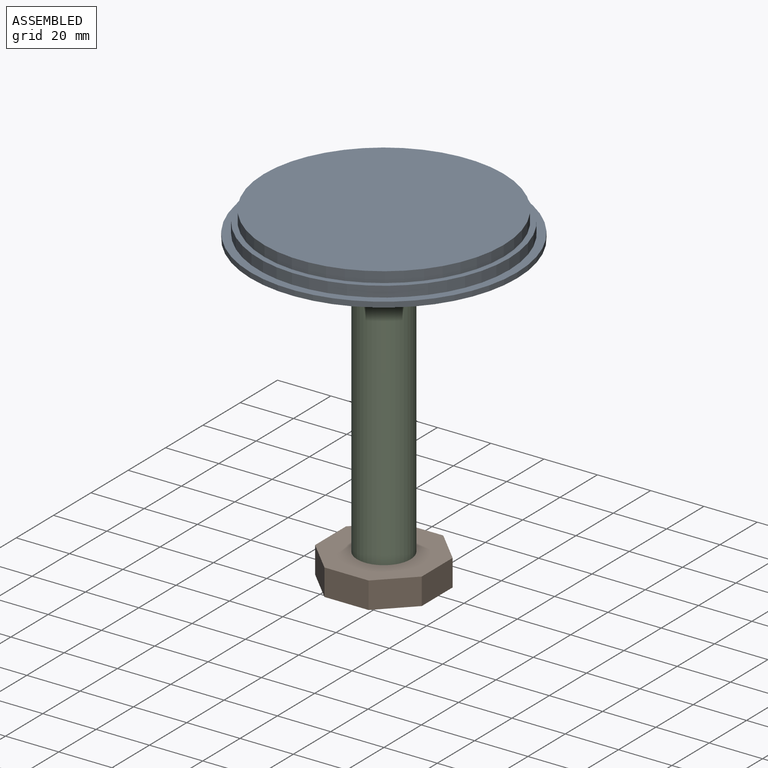
[diagram: assembled view]
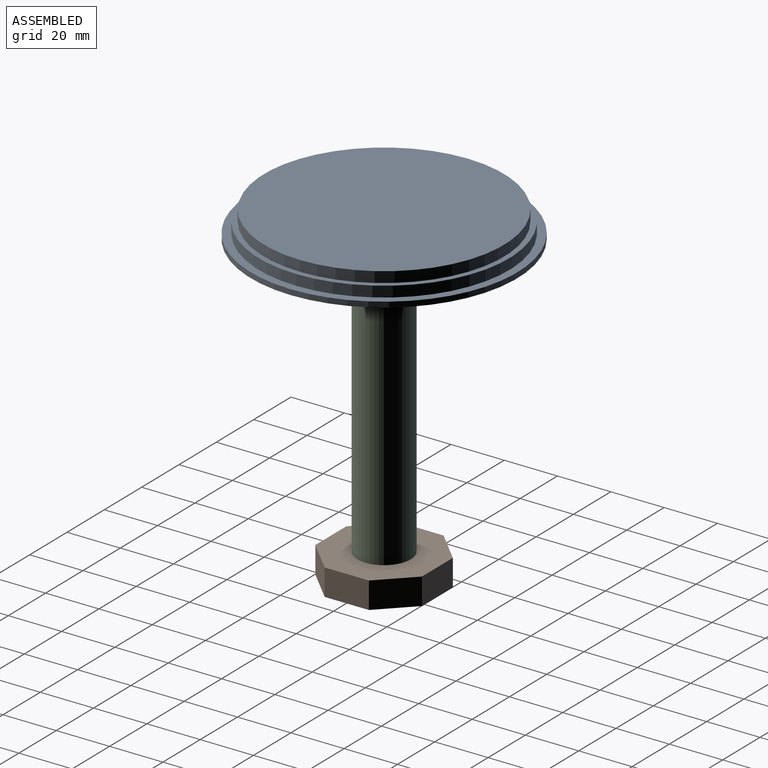
[diagram: assembled view, second angle]
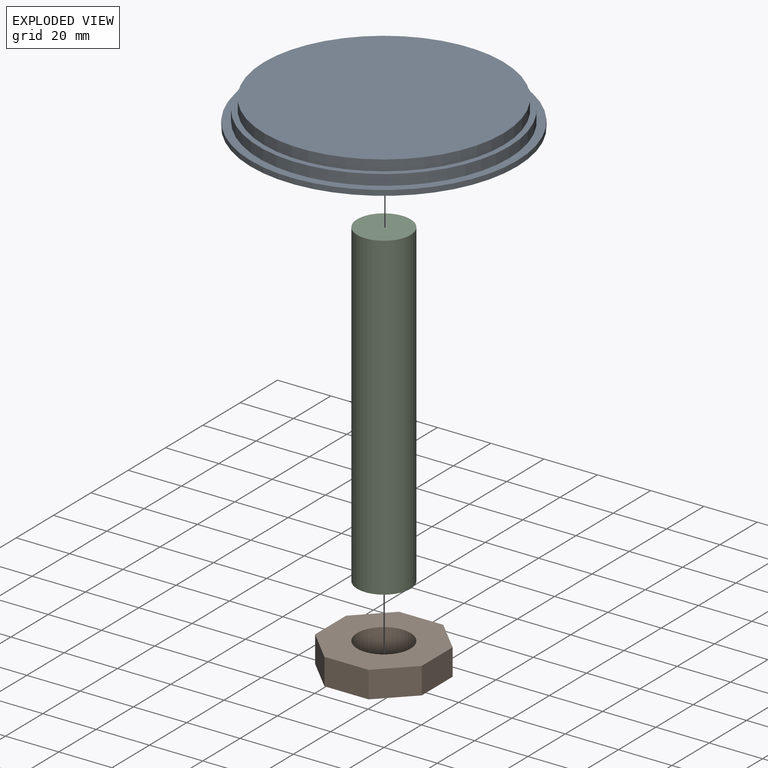
[diagram: exploded view]
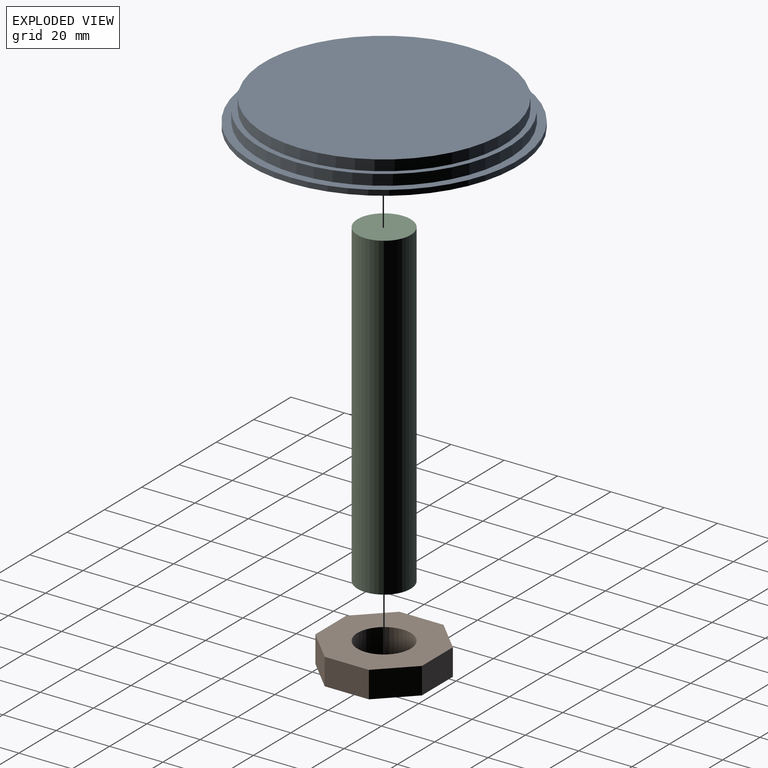
[diagram: exploded view, second angle]
ASSEMBLY  parts=3 mates=2
PART A: 9 faces, bbox 100x100x10 mm
  f0: cylinder r=45mm len=90mm, axis (0,0,-1), area 1131mm2, adj f1,f3
  f1: plane 90x90mm, normal (0,0,1), area 6361.7mm2, adj f0
  f2: cylinder r=47mm len=94mm, axis (0,0,-1), area 1181.2mm2, adj f3,f5
  f3: plane 94x94mm, normal (0,0,1), area 578.1mm2, adj f0,f2
  f4: cylinder r=50mm len=100mm, axis (0,0,-1), area 628.3mm2, adj f5,f6
  f5: plane 100x100mm, normal (0,0,1), area 914.2mm2, adj f2,f4
  f6: plane 100x100mm, normal (0,0,-1), area 7539.8mm2, adj f4,f7
  f7: cylinder r=10mm len=20mm, axis (0,0,-1), area 251.3mm2, adj f6,f8
  f8: plane 20x20mm, normal (0,0,-1), area 314.2mm2, adj f7
PART B: 11 faces, bbox 40x40x10 mm
  f0: plane 11.72x11.72mm, normal (0.71,0.71,0), area 165.7mm2, adj f1,f8,f9,f10
  f1: plane 16.57x10mm, normal (0,1,0), area 165.7mm2, adj f0,f2,f9,f10
  f2: plane 11.72x11.72mm, normal (-0.71,0.71,0), area 165.7mm2, adj f1,f3,f9,f10
  f3: plane 16.57x10mm, normal (-1,0,0), area 165.7mm2, adj f2,f4,f9,f10
  f4: plane 11.72x11.72mm, normal (-0.71,-0.71,0), area 165.7mm2, adj f3,f5,f9,f10
  f5: plane 16.57x10mm, normal (0,-1,0), area 165.7mm2, adj f4,f6,f9,f10
  f6: plane 11.72x11.72mm, normal (0.71,-0.71,0), area 165.7mm2, adj f5,f8,f9,f10
  f7: cylinder r=10mm len=20mm, axis (0,0,-1), area 628.3mm2, adj f9,f10
  f8: plane 16.57x10mm, normal (1,0,0), area 165.7mm2, adj f0,f6,f9,f10
  f9: plane 40x40mm, normal (0,0,1), area 1011.3mm2, adj f0,f1,f2,f3,f4,f5,f6,f7
  f10: plane 40x40mm, normal (0,0,-1), area 1011.3mm2, adj f0,f1,f2,f3,f4,f5,f6,f7
PART C: 3 faces, bbox 20x20x120 mm
  f0: cylinder r=10mm len=120mm, axis (0,0,-1), area 7539.8mm2, adj f1,f2
  f1: plane 20x20mm, normal (0,0,1), area 314.2mm2, adj f0
  f2: plane 20x20mm, normal (0,0,-1), area 314.2mm2, adj f0
PLACE A t=(151.31,0.92,15.03)mm
PLACE B t=(151.31,0.92,-100.97)mm
PLACE C t=(151.31,0.92,-100.97)mm
MATE slider B.f7 <-> C.f0  axis (0,0,-1) through (151.31,0.92,-100.97)mm
MATE slider C.f0 <-> A.f7  axis (0,0,1) through (151.31,0.92,19.03)mm
